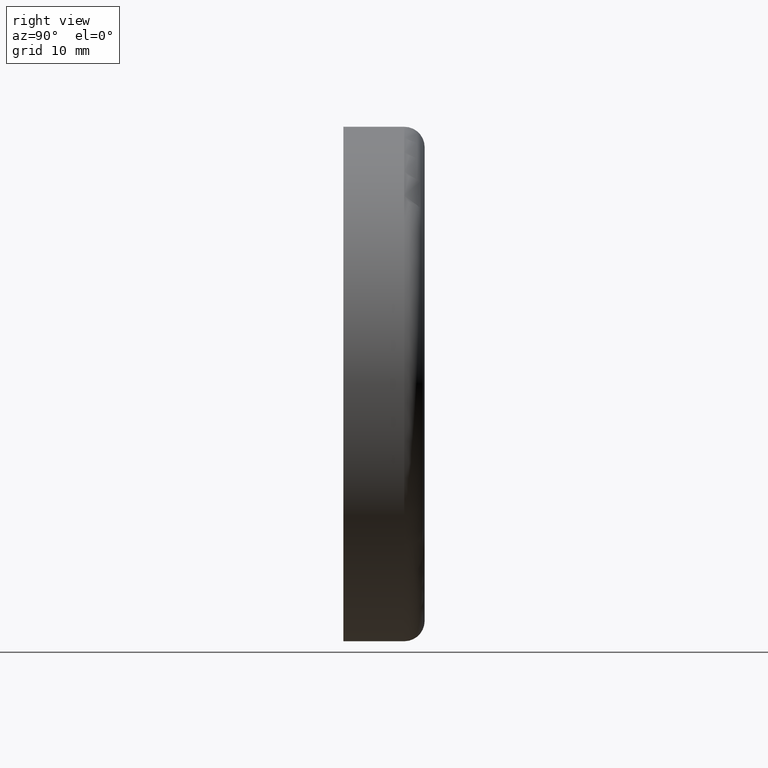
[diagram: clean part render]
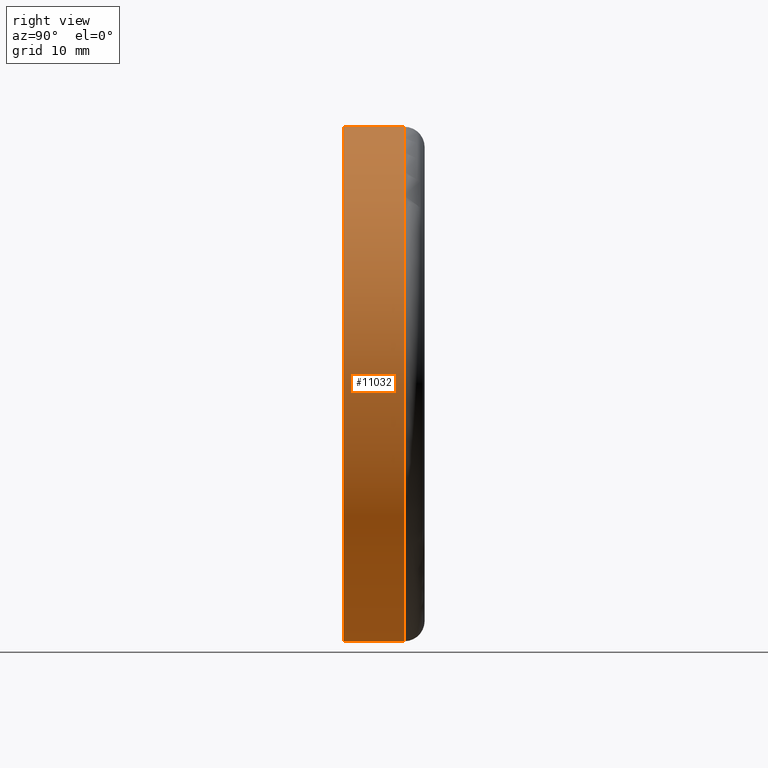
[diagram: same view with one face highlighted and labeled with its STEP entity id]
A machine part, right view. The second image highlights one B-rep face of the part: STEP entity #11032.
In plain terms, the highlighted cylindrical surface (partial cylindrical patch) has radius 38 mm, axis along (-0, -1, -0).
Its self-contained STEP definition (entity closure, byte-faithful):
#192 = ORIENTED_EDGE ( 'NONE', *, *, #12693, .F. ) ;
#332 = ORIENTED_EDGE ( 'NONE', *, *, #5228, .T. ) ;
#2017 = DIRECTION ( 'NONE',  ( -0.000000000000000000, -1.000000000000000000, -0.000000000000000000 ) ) ;
#2116 = LINE ( 'NONE', #14433, #15104 ) ;
#2677 = VERTEX_POINT ( 'NONE', #14003 ) ;
#3124 = EDGE_LOOP ( 'NONE', ( #332, #5440, #192, #13495 ) ) ;
#3562 = DIRECTION ( 'NONE',  ( -0.000000000000000000, -1.000000000000000000, -0.000000000000000000 ) ) ;
#3849 = VERTEX_POINT ( 'NONE', #9206 ) ;
#4232 = LINE ( 'NONE', #6307, #8104 ) ;
#5228 = EDGE_CURVE ( 'NONE', #13219, #2677, #6288, .T. ) ;
#5440 = ORIENTED_EDGE ( 'NONE', *, *, #14164, .T. ) ;
#6288 = CIRCLE ( 'NONE', #8747, 38.00000000000000711 ) ;
#6307 = CARTESIAN_POINT ( 'NONE',  ( 4.653657836759942730E-15, 0.000000000000000000, 38.00000000000000711 ) ) ;
#7186 = DIRECTION ( 'NONE',  ( 0.000000000000000000, 0.000000000000000000, -1.000000000000000000 ) ) ;
#7610 = AXIS2_PLACEMENT_3D ( 'NONE', #13392, #9683, #8379 ) ;
#8104 = VECTOR ( 'NONE', #8824, 1000.000000000000000 ) ;
#8379 = DIRECTION ( 'NONE',  ( 0.000000000000000000, 0.000000000000000000, -1.000000000000000000 ) ) ;
#8747 = AXIS2_PLACEMENT_3D ( 'NONE', #9855, #3562, #7186 ) ;
#8824 = DIRECTION ( 'NONE',  ( -0.000000000000000000, -1.000000000000000000, -0.000000000000000000 ) ) ;
#9206 = CARTESIAN_POINT ( 'NONE',  ( 4.653657836759942730E-15, 0.000000000000000000, 38.00000000000000711 ) ) ;
#9683 = DIRECTION ( 'NONE',  ( -0.000000000000000000, -1.000000000000000000, -0.000000000000000000 ) ) ;
#9789 = CARTESIAN_POINT ( 'NONE',  ( 0.000000000000000000, 0.000000000000000000, -38.00000000000000711 ) ) ;
#9855 = CARTESIAN_POINT ( 'NONE',  ( 0.000000000000000000, 9.000000000000001776, 0.000000000000000000 ) ) ;
#9927 = FACE_OUTER_BOUND ( 'NONE', #3124, .T. ) ;
#10912 = CYLINDRICAL_SURFACE ( 'NONE', #7610, 38.00000000000000711 ) ;
#11032 = ADVANCED_FACE ( 'NONE', ( #9927 ), #10912, .T. ) ;
#11096 = CARTESIAN_POINT ( 'NONE',  ( 0.000000000000000000, 0.000000000000000000, 0.000000000000000000 ) ) ;
#11329 = CARTESIAN_POINT ( 'NONE',  ( 0.000000000000000000, 9.000000000000001776, -38.00000000000000711 ) ) ;
#12015 = CIRCLE ( 'NONE', #12716, 38.00000000000000711 ) ;
#12568 = EDGE_CURVE ( 'NONE', #13219, #16010, #2116, .T. ) ;
#12693 = EDGE_CURVE ( 'NONE', #16010, #3849, #12015, .T. ) ;
#12716 = AXIS2_PLACEMENT_3D ( 'NONE', #11096, #13559, #14912 ) ;
#13219 = VERTEX_POINT ( 'NONE', #11329 ) ;
#13392 = CARTESIAN_POINT ( 'NONE',  ( 0.000000000000000000, 0.000000000000000000, 0.000000000000000000 ) ) ;
#13495 = ORIENTED_EDGE ( 'NONE', *, *, #12568, .F. ) ;
#13559 = DIRECTION ( 'NONE',  ( -0.000000000000000000, -1.000000000000000000, -0.000000000000000000 ) ) ;
#14003 = CARTESIAN_POINT ( 'NONE',  ( 4.653657836759942730E-15, 9.000000000000001776, 38.00000000000000711 ) ) ;
#14164 = EDGE_CURVE ( 'NONE', #2677, #3849, #4232, .T. ) ;
#14433 = CARTESIAN_POINT ( 'NONE',  ( 0.000000000000000000, 0.000000000000000000, -38.00000000000000711 ) ) ;
#14912 = DIRECTION ( 'NONE',  ( 0.000000000000000000, 0.000000000000000000, -1.000000000000000000 ) ) ;
#15104 = VECTOR ( 'NONE', #2017, 1000.000000000000000 ) ;
#16010 = VERTEX_POINT ( 'NONE', #9789 ) ;